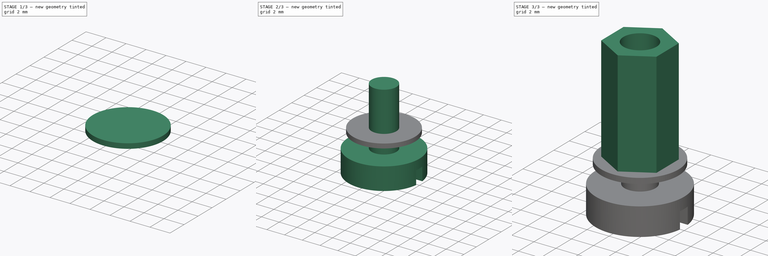
[diagram: build sequence overview — one tinted view per stage of 3, left to right]
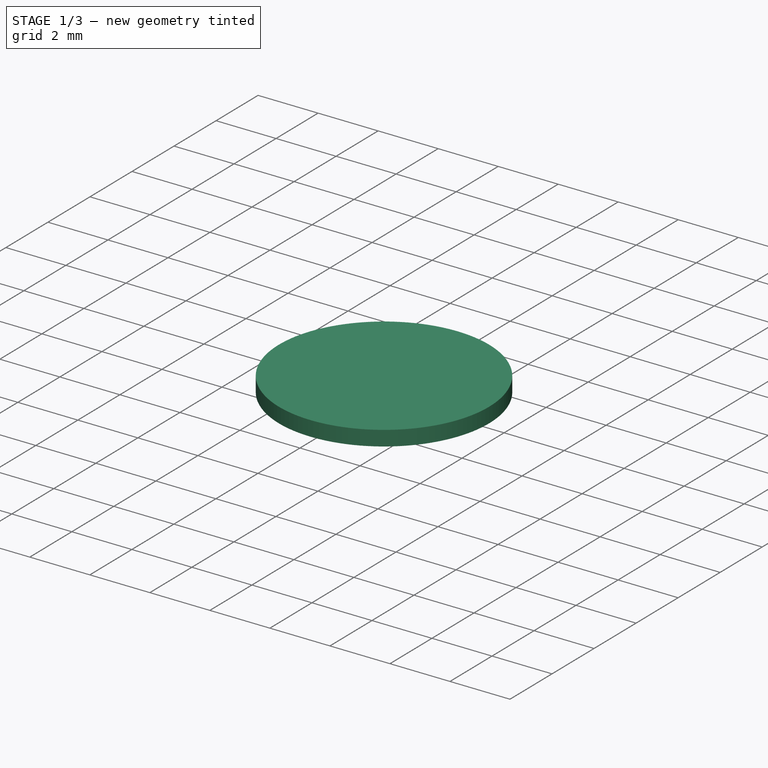
[diagram: stage 1 of 3 — iso view after this stage's code; geometry added in this stage tinted green]
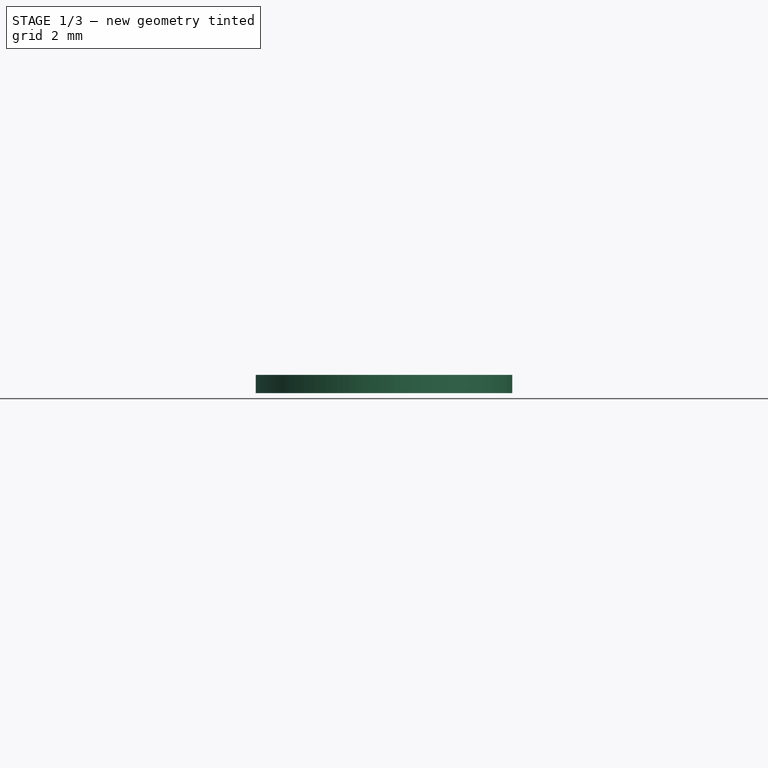
[diagram: stage 1 of 3 — front view after this stage's code; geometry added in this stage tinted green]
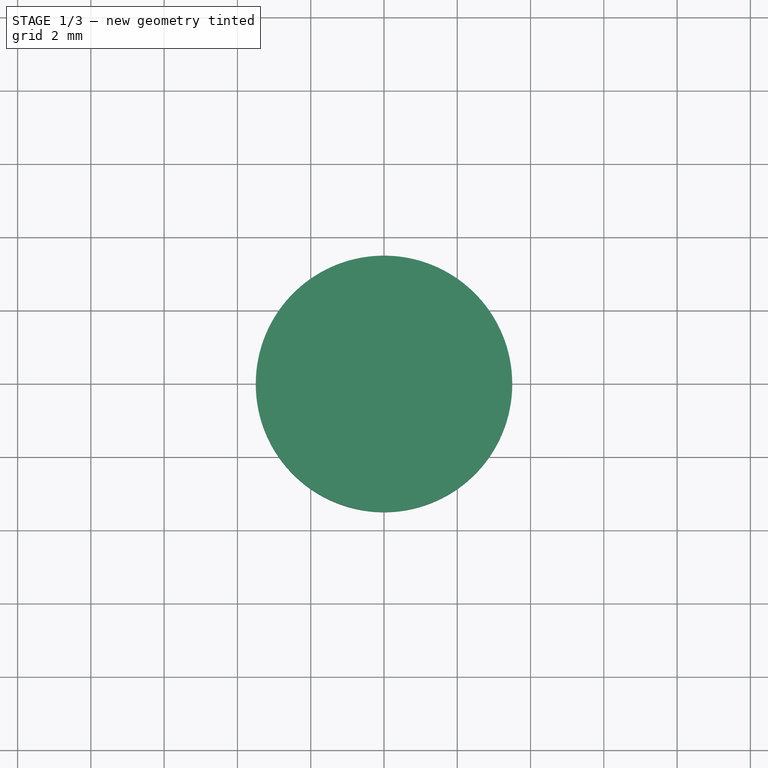
[diagram: stage 1 of 3 — top view after this stage's code; geometry added in this stage tinted green]
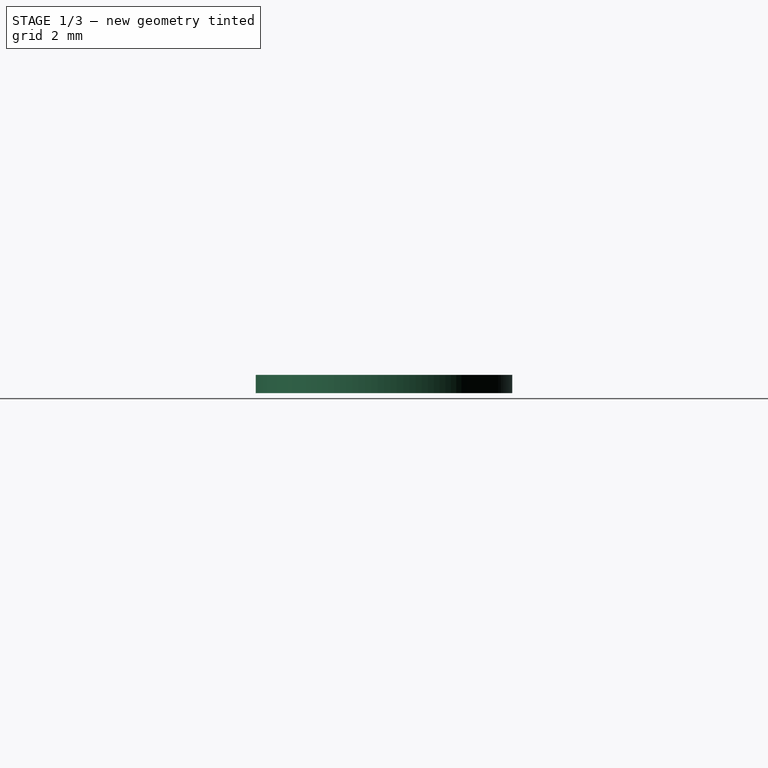
[diagram: stage 1 of 3 — right view after this stage's code; geometry added in this stage tinted green]
FCSTD DOCUMENT  (FreeCAD 0.18.4R)
Label: spacerpost
License: All rights reserved
LicenseURL: http://en.wikipedia.org/wiki/All_rights_reserved
objects: PartDesign::Body×5, Sketcher::SketchObject×4, PartDesign::Pocket×2, PartDesign::FeatureBase×2, PartDesign::Pad×1, PartDesign::Revolution×1, PartDesign::AdditiveCylinder×1
note: 21 computed .brp shape members not serialized (recipe doc carries the construction recipe); baked Part::Feature solids carry a one-line shape summary decoded from their .brp

FEATURE [PartDesign::Body] Body002  label="screwhead_top"
  Group = -> [Clone]
  Origin = -> Origin002
  Placement = pos=(0,0,11) rot=(1,0,0;3.14159rad)
  Tip = -> Clone
FEATURE [PartDesign::AdditiveCylinder] Cylinder
  Angle = 360
  AttacherType = Attacher::AttachEngine3D
  Height = 0.5
  Radius = 3.5
  Refine = true
FEATURE [PartDesign::Body] Body003  label="washer"
  Group = -> [Cylinder]
  Origin = -> Origin003
  Tip = -> Cylinder
FEATURE [PartDesign::FeatureBase] Clone001
  BaseFeature = -> Body003
FEATURE [PartDesign::Body] Body004  label="washer_top"
  Group = -> [Clone001]
  Origin = -> Origin004
  Placement = pos=(0,0,10.5) rot=(0,0,1;0rad)
  Tip = -> Clone001
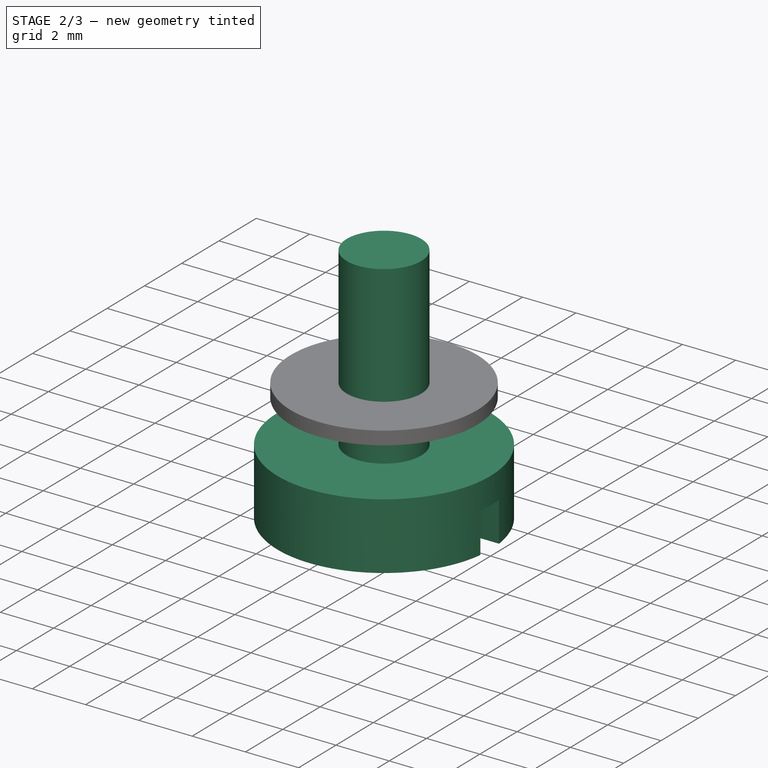
[diagram: stage 2 of 3 — iso view after this stage's code; geometry added in this stage tinted green]
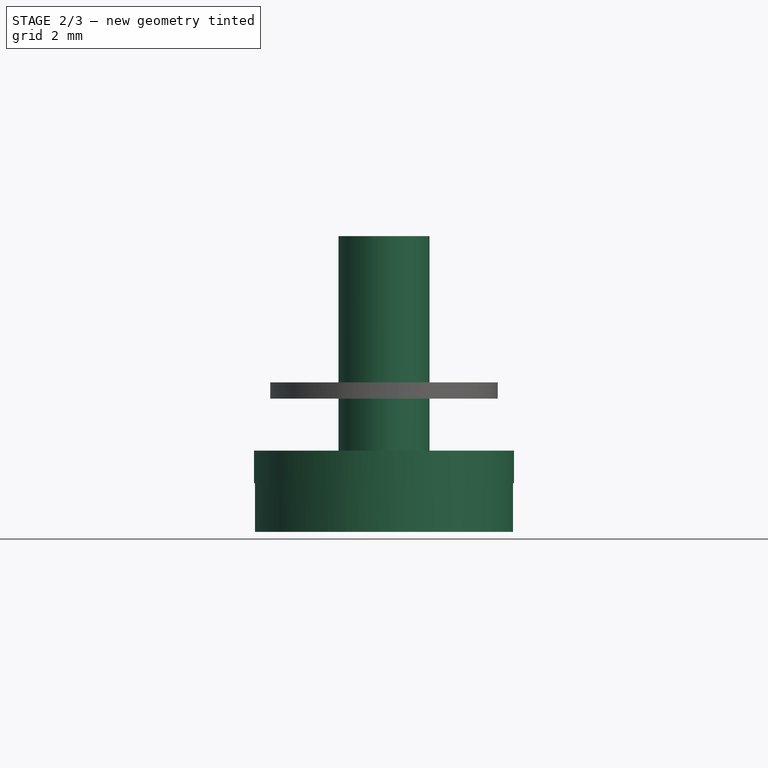
[diagram: stage 2 of 3 — front view after this stage's code; geometry added in this stage tinted green]
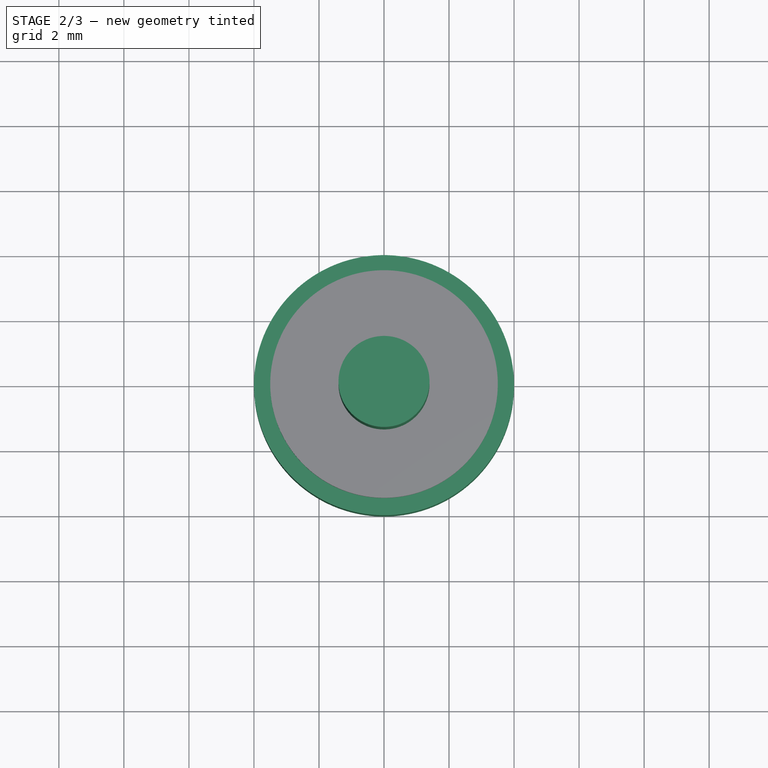
[diagram: stage 2 of 3 — top view after this stage's code; geometry added in this stage tinted green]
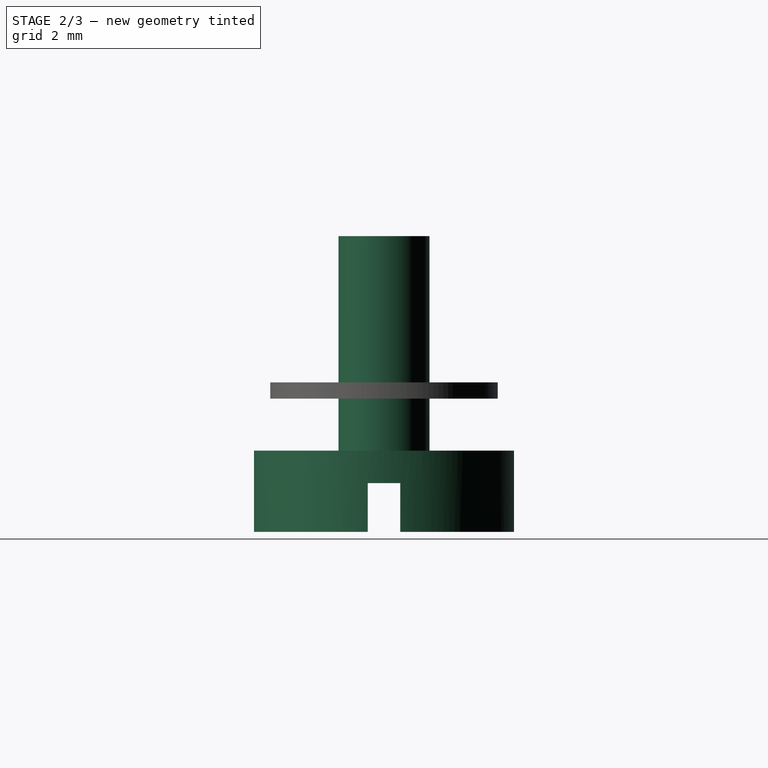
[diagram: stage 2 of 3 — right view after this stage's code; geometry added in this stage tinted green]
FEATURE [PartDesign::Body] Body  label="post"
  Group = -> [Sketch,Pad,Sketch001,Pocket]
  Origin = -> Origin
  Placement = pos=(0,0,0.5) rot=(0,0,1;0rad)
  Tip = -> Pocket
FEATURE [Sketcher::SketchObject] Sketch002
  MapMode = 5
  Placement = pos=(0,0,0) rot=(1,0,0;1.5708rad)
  Support = -> [XZ_Plane001]
  sketch-geometry (6):
    g0: LineSegment StartX=1.4 StartY=0 StartZ=0 EndX=1.4 EndY=6.6 EndZ=0
    g1: LineSegment StartX=1.4 StartY=6.6 StartZ=0 EndX=0 EndY=6.6 EndZ=0
    g2: LineSegment StartX=1.4 StartY=0 StartZ=0 EndX=4 EndY=0 EndZ=0
    g3: LineSegment StartX=0 StartY=-2.5 StartZ=0 EndX=0 EndY=6.6 EndZ=0
    g4: LineSegment StartX=4 StartY=0 StartZ=0 EndX=4 EndY=-2.5 EndZ=0
    g5: LineSegment StartX=0 StartY=-2.5 StartZ=0 EndX=4 EndY=-2.5 EndZ=0
  constraints (18):
    c: Coincident(g0,g1)
    c: Horizontal(g1)
    c: Vertical(g0)
    c: Coincident(g2,g0)
    c: Horizontal(g2)
    c: DistanceX(g1,g1) = 1.4
    c: PointOnObject(g1,g-2)
    c: Coincident(g3,g1)
    c: Vertical(g3)
    c: DistanceY(g2,g0) = 6.6
    c: Coincident(g4,g2)
    c: Vertical(g4)
    c: Coincident(g5,g4)
    c: Horizontal(g5)
    c: Coincident(g5,g3)
    c: DistanceY(g4,g4) = 2.5
    c: DistanceX(g5,g5) = 4
    c: PointOnObject(g0,g-1)
FEATURE [PartDesign::Revolution] Revolution
  Angle = 360
  Axis = (0,2e-16,1)
  Base = (0,0,0)
  Placement = pos=(0,0,0) rot=(1,0,0;1.5708rad)
  Profile = -> Sketch002
  ReferenceAxis = -> Sketch002 [V_Axis]
  Refine = true
  Reversed = true
FEATURE [Sketcher::SketchObject] Sketch003
  MapMode = 5
  Placement = pos=(0,-1.7e-15,-2.5) rot=(1,0,0;3.14159rad)
  Support = -> [Revolution]
  sketch-geometry (4):
    g0: LineSegment StartX=-4 StartY=0.5 StartZ=0 EndX=4 EndY=0.5 EndZ=0
    g1: LineSegment StartX=4 StartY=0.5 StartZ=0 EndX=4 EndY=-0.5 EndZ=0
    g2: LineSegment StartX=4 StartY=-0.5 StartZ=0 EndX=-4 EndY=-0.5 EndZ=0
    g3: LineSegment StartX=-4 StartY=-0.5 StartZ=0 EndX=-4 EndY=0.5 EndZ=0
  constraints (10):
    c: Coincident(g0,g1)
    c: Coincident(g1,g2)
    c: Coincident(g2,g3)
    c: Coincident(g3,g0)
    c: Horizontal(g2)
    c: Vertical(g3)
    c: Symmetric(g0,g0,g-2)
    c: Symmetric(g0,g1,g-1)
    c: DistanceX(g0,g0) = 8
    c: DistanceY(g1,g1) = 1
FEATURE [PartDesign::Pocket] Pocket001
  BaseFeature = -> Revolution
  Length = 1.5
  Length2 = 100
  Placement = pos=(0,0,0) rot=(1,0,0;1.5708rad)
  Profile = -> Sketch003
  Refine = true
  Type = 0
FEATURE [PartDesign::Body] Body001  label="screwhead"
  Group = -> [Sketch002,Revolution,Sketch003,Pocket001]
  Origin = -> Origin001
  Placement = pos=(0,0,-1.6) rot=(0,0,1;0rad)
  Tip = -> Pocket001
FEATURE [PartDesign::FeatureBase] Clone
  BaseFeature = -> Body001
  Placement = pos=(0,0,-1.6) rot=(0,0,1;0rad)
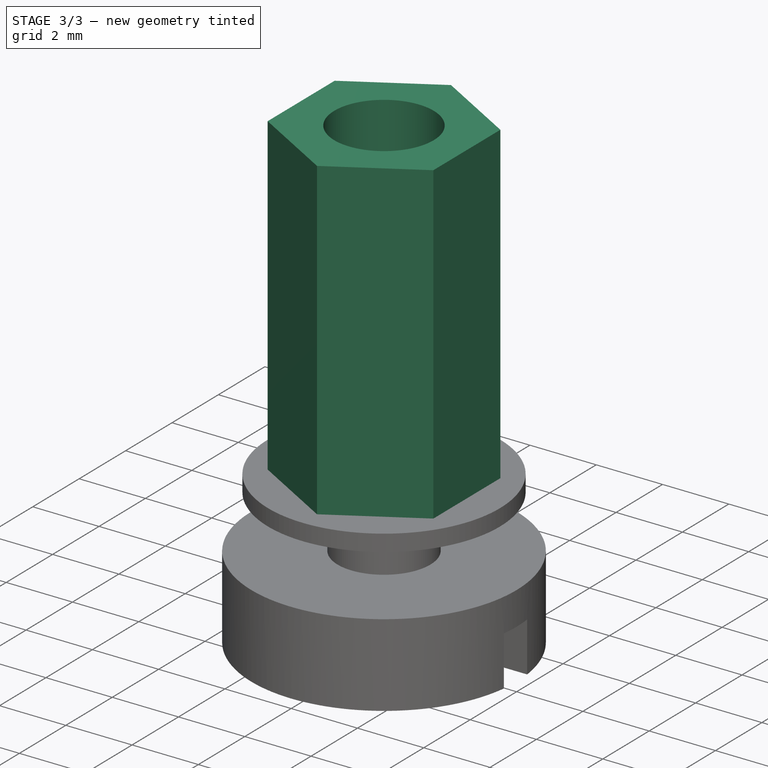
[diagram: stage 3 of 3 — iso view after this stage's code; geometry added in this stage tinted green]
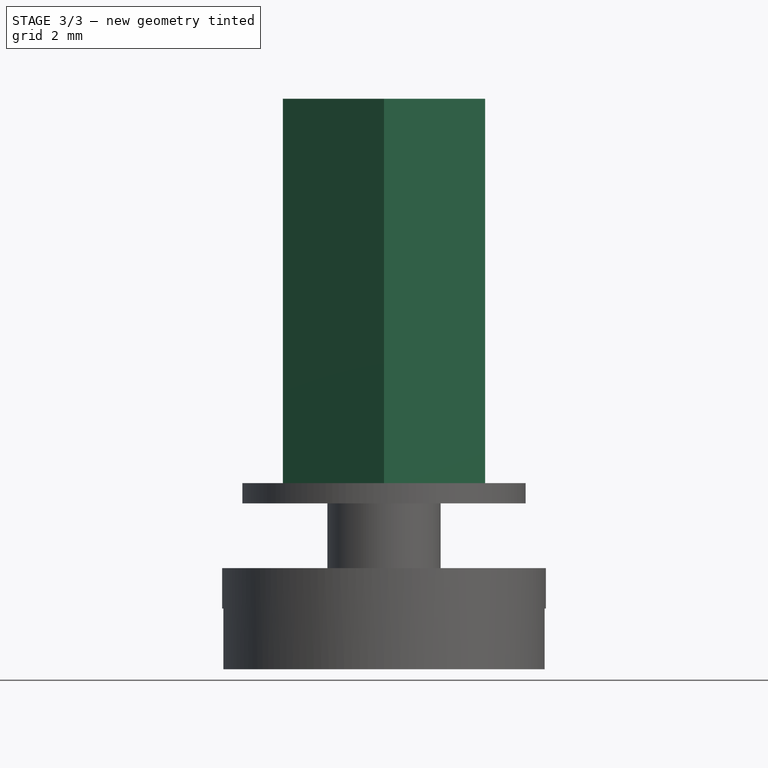
[diagram: stage 3 of 3 — front view after this stage's code; geometry added in this stage tinted green]
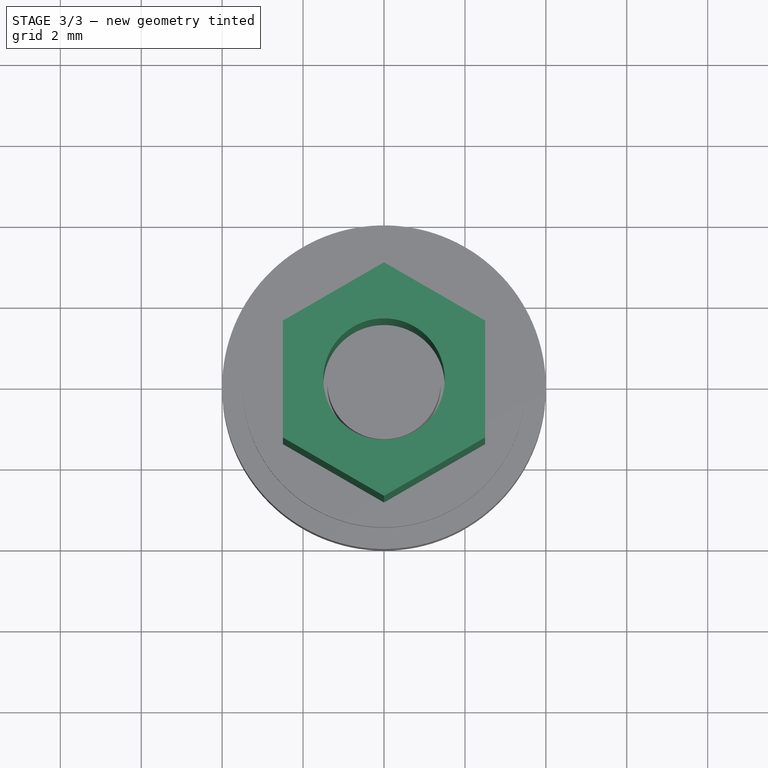
[diagram: stage 3 of 3 — top view after this stage's code; geometry added in this stage tinted green]
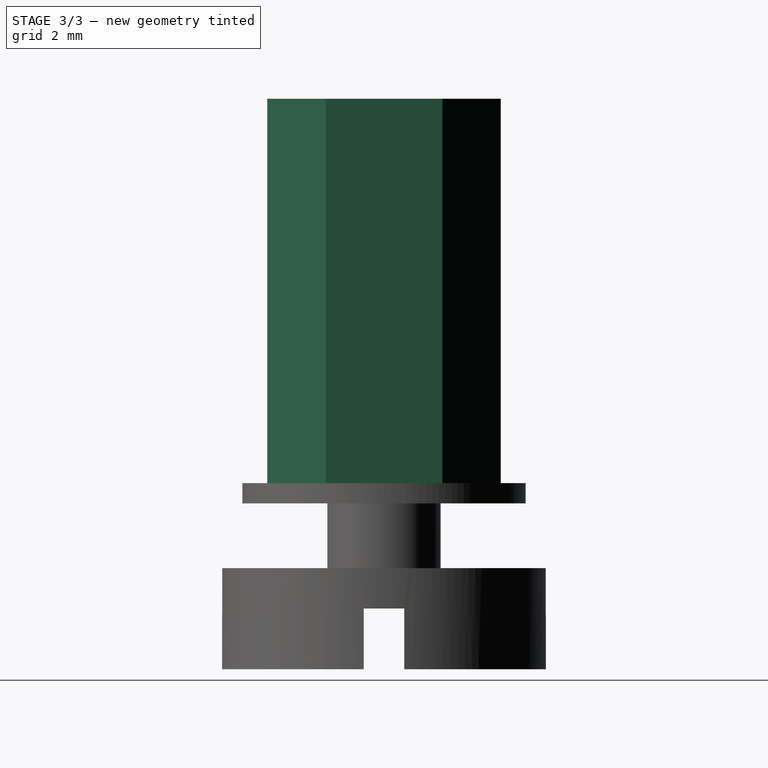
[diagram: stage 3 of 3 — right view after this stage's code; geometry added in this stage tinted green]
FEATURE [Sketcher::SketchObject] Sketch
  MapMode = 5
  Support = -> [XY_Plane]
  sketch-geometry (7):
    g0: LineSegment StartX=2.5 StartY=1.44338 StartZ=0 EndX=-4.8e-14 EndY=2.88675 EndZ=0
    g1: LineSegment StartX=-4.8e-14 StartY=2.88675 StartZ=0 EndX=-2.5 EndY=1.44338 EndZ=0
    g2: LineSegment StartX=-2.5 StartY=1.44338 StartZ=0 EndX=-2.5 EndY=-1.44338 EndZ=0
    g3: LineSegment StartX=-2.5 StartY=-1.44338 StartZ=0 EndX=-4.88e-14 EndY=-2.88675 EndZ=0
    g4: LineSegment StartX=-4.9e-14 StartY=-2.88675 StartZ=0 EndX=2.5 EndY=-1.44338 EndZ=0
    g5: LineSegment StartX=2.5 StartY=-1.44338 StartZ=0 EndX=2.5 EndY=1.44338 EndZ=0
    g6: Circle [constr] CenterX=0 CenterY=0 CenterZ=0 NormalX=0 NormalY=0 NormalZ=1 AngleXU=0 Radius=2.88675
  constraints (16):
    c: Coincident(g0,g1)
    c: Coincident(g1,g2)
    c: Coincident(g2,g3)
    c: Coincident(g3,g4)
    c: Coincident(g4,g5)
    c: Coincident(g5,g0)
    c: Equal(g0, g1-g5) x5
    c: PointOnObject(g0,g6)
    c: PointOnObject(g1,g6)
    c: PointOnObject(g2,g6)
    c: PointOnObject(g3,g6)
    c: PointOnObject(g4,g6)
    c: PointOnObject(g5,g6)
    c: Coincident(g6,g-1)
    c: Vertical(g2)
    c: DistanceX(g1,g0) = 5
FEATURE [PartDesign::Pad] Pad
  Length = 10
  Length2 = 100
  Profile = -> Sketch
  Refine = true
  Type = 0
FEATURE [Sketcher::SketchObject] Sketch001
  MapMode = 5
  Placement = pos=(0,0,10) rot=(0,0,1;0rad)
  Support = -> [Pad]
  sketch-geometry (1):
    g0: Circle CenterX=0 CenterY=0 CenterZ=0 NormalX=0 NormalY=0 NormalZ=1 AngleXU=0 Radius=1.5
  constraints (2):
    c: Coincident(g0,g-1)
    c: Diameter(g0) = 3
FEATURE [PartDesign::Pocket] Pocket
  BaseFeature = -> Pad
  Length = 5
  Length2 = 100
  Profile = -> Sketch001
  Refine = true
  Type = 1
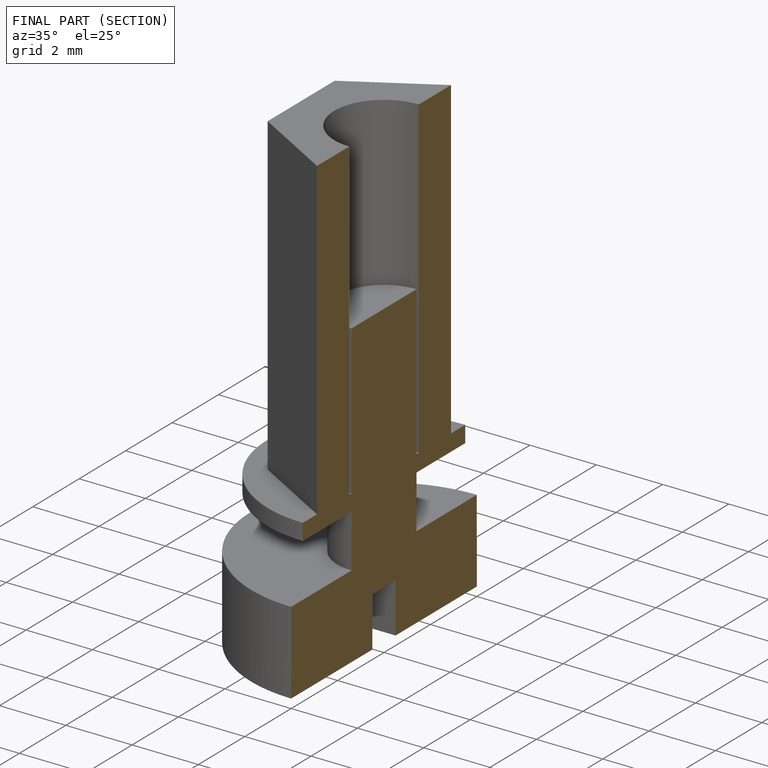
[diagram: finished part — half-section view (interior)]
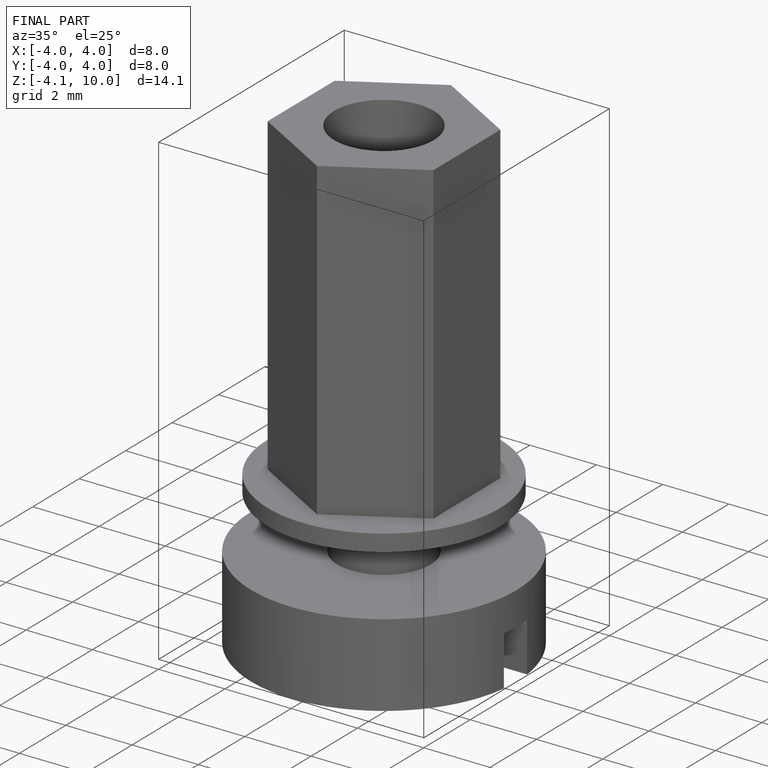
[diagram: finished part — iso view with bounding-box wireframe]
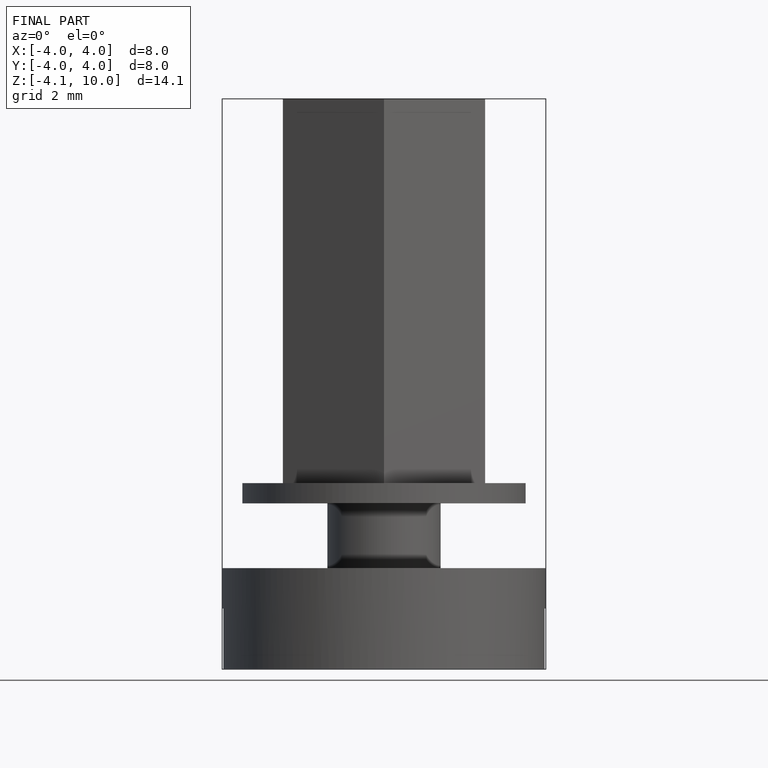
[diagram: finished part — front view with bounding-box wireframe]
